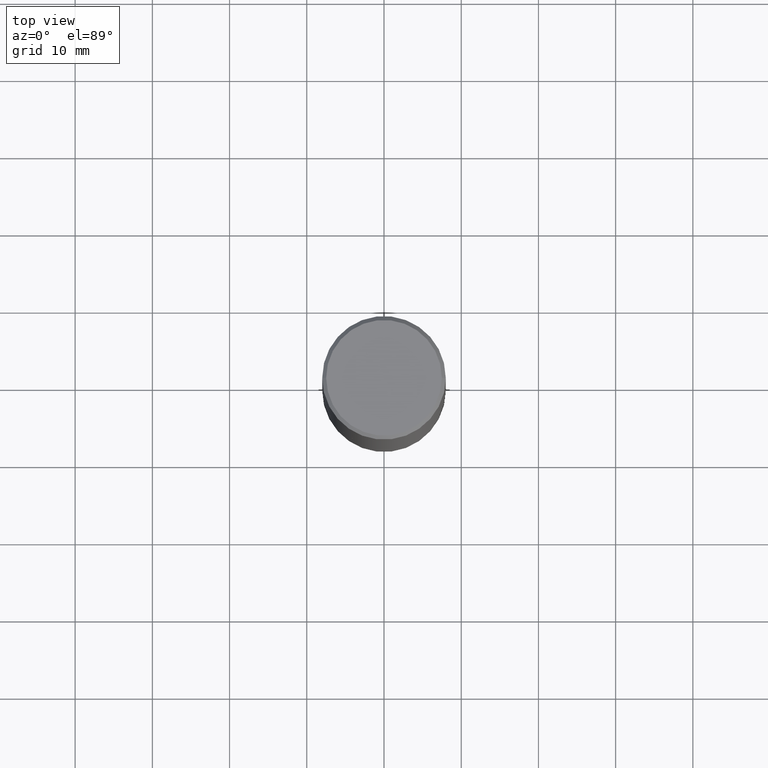
[diagram: clean part render]
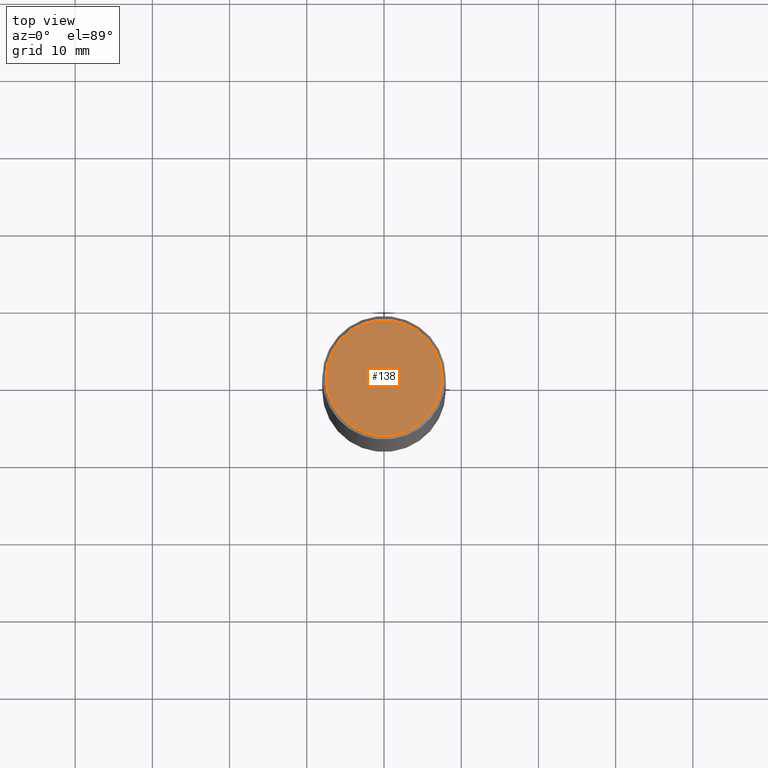
[diagram: same view with one face highlighted and labeled with its STEP entity id]
A machine part, top view. The second image highlights one B-rep face of the part: STEP entity #138.
In plain terms, the highlighted planar face has unit normal (0, -0, -1).
Its self-contained STEP definition (entity closure, byte-faithful):
#18 = PLANE ( 'NONE',  #358 ) ;
#34 = VERTEX_POINT ( 'NONE', #246 ) ;
#38 = AXIS2_PLACEMENT_3D ( 'NONE', #110, #203, #317 ) ;
#45 = EDGE_LOOP ( 'NONE', ( #180, #329 ) ) ;
#46 = CARTESIAN_POINT ( 'NONE',  ( -1.043851414335219820E-46, 1.490343170380447200E-32, 4.268512490100411279E-18 ) ) ;
#92 = CIRCLE ( 'NONE', #38, 0.2949499999999997124 ) ;
#97 = DIRECTION ( 'NONE',  ( -2.445468806185136597E-29, 3.491481338843145583E-15, 1.000000000000000000 ) ) ;
#110 = CARTESIAN_POINT ( 'NONE',  ( -1.043851414335219820E-46, 1.490343170380447200E-32, 4.268512490100411279E-18 ) ) ;
#125 = EDGE_CURVE ( 'NONE', #144, #34, #163, .T. ) ;
#138 = ADVANCED_FACE ( 'NONE', ( #271 ), #18, .F. ) ;
#144 = VERTEX_POINT ( 'NONE', #325 ) ;
#163 = CIRCLE ( 'NONE', #183, 0.2949499999999997124 ) ;
#180 = ORIENTED_EDGE ( 'NONE', *, *, #348, .T. ) ;
#183 = AXIS2_PLACEMENT_3D ( 'NONE', #46, #97, #296 ) ;
#203 = DIRECTION ( 'NONE',  ( -2.445468806185136597E-29, 3.491481338843145583E-15, 1.000000000000000000 ) ) ;
#217 = DIRECTION ( 'NONE',  ( -1.000000000000000000, 6.982962677686265922E-15, -4.876176775795935793E-29 ) ) ;
#238 = DIRECTION ( 'NONE',  ( 2.438088387897960049E-29, -3.491481338843145188E-15, -1.000000000000000000 ) ) ;
#246 = CARTESIAN_POINT ( 'NONE',  ( -0.2949499999999997124, 2.094539655171993740E-15, 4.268512490085885145E-18 ) ) ;
#271 = FACE_OUTER_BOUND ( 'NONE', #45, .T. ) ;
#275 = CARTESIAN_POINT ( 'NONE',  ( 2.059624841783562091E-15, 0.2949499999999997124, -1.027678164646734579E-15 ) ) ;
#296 = DIRECTION ( 'NONE',  ( 1.000000000000000000, -6.982962677686267499E-15, 4.876053491004739391E-29 ) ) ;
#317 = DIRECTION ( 'NONE',  ( 1.000000000000000000, -6.982962677686267499E-15, 4.876053491004739391E-29 ) ) ;
#325 = CARTESIAN_POINT ( 'NONE',  ( 0.2949499999999997124, -2.127023677808858103E-15, 4.268512490115050658E-18 ) ) ;
#329 = ORIENTED_EDGE ( 'NONE', *, *, #125, .T. ) ;
#348 = EDGE_CURVE ( 'NONE', #34, #144, #92, .T. ) ;
#358 = AXIS2_PLACEMENT_3D ( 'NONE', #275, #238, #217 ) ;